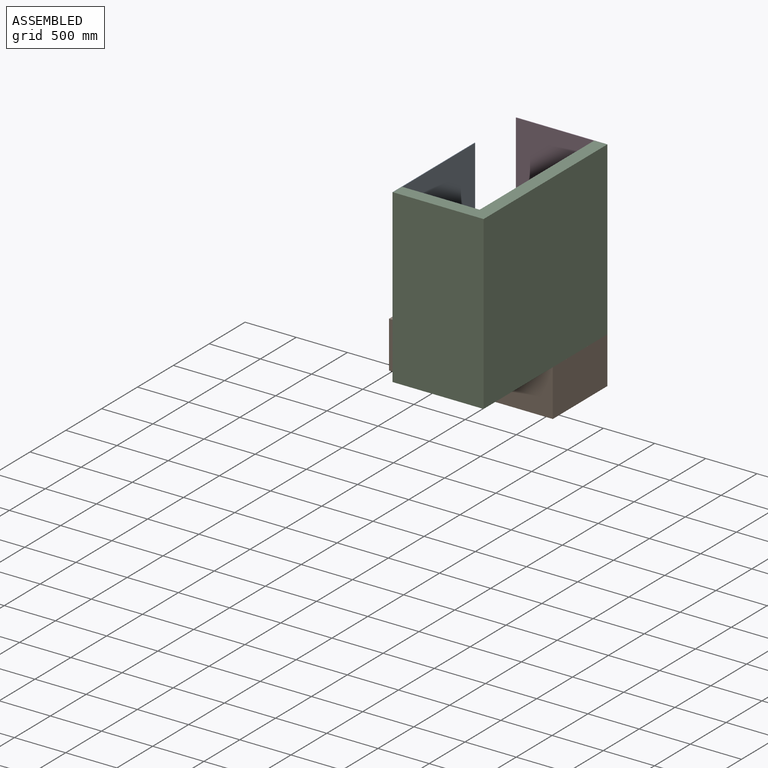
[diagram: assembled view]
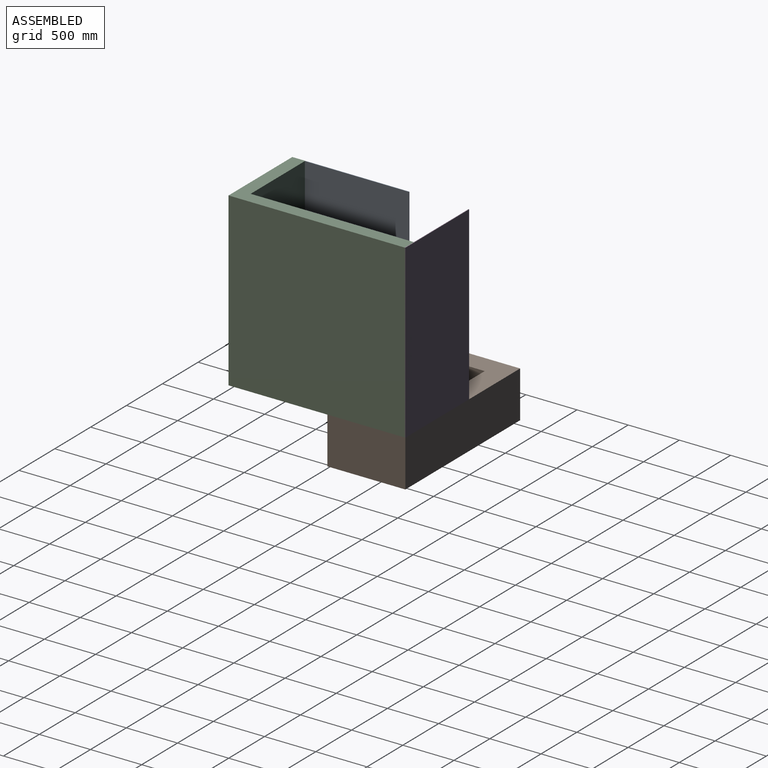
[diagram: assembled view, second angle]
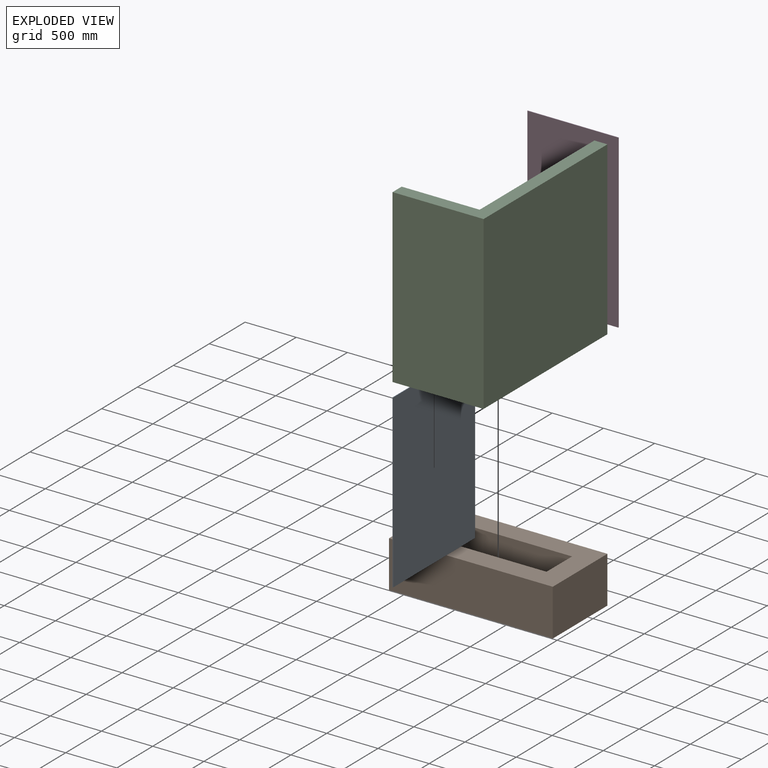
[diagram: exploded view]
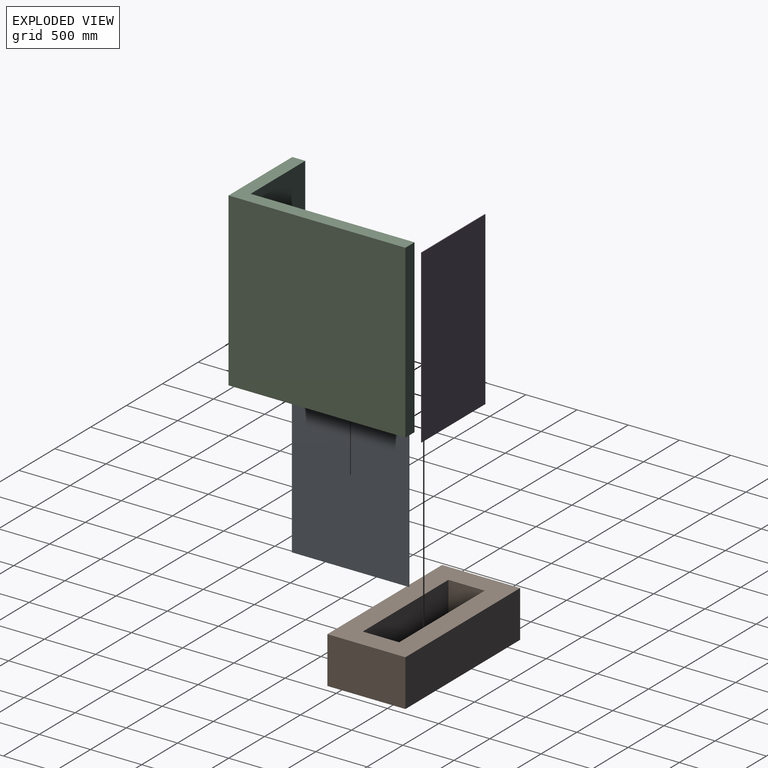
[diagram: exploded view, second angle]
ASSEMBLY  parts=4 mates=5
PART A: 6 faces, bbox 1143x6.4x1676.4 mm
  f0: plane 1143x6.35mm, normal (0,0,1), area 7258mm2, adj f1,f3,f4,f5
  f1: plane 1676.4x6.35mm, normal (-1,0,0), area 10645.1mm2, adj f0,f2,f4,f5
  f2: plane 1143x6.35mm, normal (0,0,-1), area 7258mm2, adj f1,f3,f4,f5
  f3: plane 1676.4x6.35mm, normal (1,0,0), area 10645.1mm2, adj f0,f2,f4,f5
  f4: plane 1676.4x1143mm, normal (0,-1,0), area 1916125.2mm2, adj f0,f1,f2,f3
  f5: plane 1676.4x1143mm, normal (0,1,0), area 1916125.2mm2, adj f0,f1,f2,f3
PART B: 10 faces, bbox 1600.2x762x457.2 mm
  f0: plane 1600.2x457.2mm, normal (0,1,0), area 731611.4mm2, adj f1,f7,f8,f9
  f1: plane 762x457.2mm, normal (-1,0,0), area 348386.4mm2, adj f0,f2,f8,f9
  f2: plane 1600.2x457.2mm, normal (0,-1,0), area 731611.4mm2, adj f1,f7,f8,f9
  f3: plane 457.2x355.6mm, normal (1,0,0), area 162580.3mm2, adj f4,f6,f8,f9
  f4: plane 1193.8x457.2mm, normal (0,-1,0), area 545805.4mm2, adj f3,f5,f8,f9
  f5: plane 457.2x355.6mm, normal (-1,0,0), area 162580.3mm2, adj f4,f6,f8,f9
  f6: plane 1193.8x457.2mm, normal (0,1,0), area 545805.4mm2, adj f3,f5,f8,f9
  f7: plane 762x457.2mm, normal (1,0,0), area 348386.4mm2, adj f0,f2,f8,f9
  f8: plane 1600.2x762mm, normal (0,0,1), area 794837.1mm2, adj f0,f1,f2,f3,f4,f5,f6,f7
  f9: plane 1600.2x762mm, normal (0,0,-1), area 794837.1mm2, adj f0,f1,f2,f3,f4,f5,f6,f7
PART C: 8 faces, bbox 889x1727.2x1676.4 mm
  f0: plane 1727.2x889mm, normal (0,0,1), area 316128.4mm2, adj f1,f3,f4,f5,f6,f7
  f1: plane 1676.4x127mm, normal (0,-1,0), area 212902.8mm2, adj f0,f2,f3,f4
  f2: plane 1727.2x889mm, normal (0,0,-1), area 316128.4mm2, adj f1,f3,f4,f5,f6,f7
  f3: plane 1727.2x1676.4mm, normal (1,0,0), area 2895478.1mm2, adj f0,f1,f2,f6
  f4: plane 1676.4x1600.2mm, normal (-1,0,0), area 2682575.3mm2, adj f0,f1,f2,f7
  f5: plane 1676.4x127mm, normal (-1,0,0), area 212902.8mm2, adj f0,f2,f6,f7
  f6: plane 1676.4x889mm, normal (0,1,0), area 1490319.6mm2, adj f0,f2,f3,f5
  f7: plane 1676.4x762mm, normal (0,-1,0), area 1277416.8mm2, adj f0,f2,f4,f5
PART D: 6 faces, bbox 889x6.4x1676.4 mm
  f0: plane 889x6.35mm, normal (0,0,1), area 5645.2mm2, adj f1,f3,f4,f5
  f1: plane 1676.4x6.35mm, normal (-1,0,0), area 10645.1mm2, adj f0,f2,f4,f5
  f2: plane 889x6.35mm, normal (0,0,-1), area 5645.2mm2, adj f1,f3,f4,f5
  f3: plane 1676.4x6.35mm, normal (1,0,0), area 10645.1mm2, adj f0,f2,f4,f5
  f4: plane 1676.4x889mm, normal (0,-1,0), area 1490319.6mm2, adj f0,f1,f2,f3
  f5: plane 1676.4x889mm, normal (0,1,0), area 1490319.6mm2, adj f0,f1,f2,f3
PLACE A rot(axis=(0,0,-1),90deg) t=(1129.01,-471.94,9.48)mm
PLACE B t=(1211.56,302.76,-1285.92)mm
PLACE C rot(axis=(-1,0,0),180deg) t=(1884.66,-116.34,9.48)mm
PLACE D rot(axis=(0,0,1),180deg) t=(1567.16,677.41,9.48)mm
MATE fastened A.f0 <-> C.f2  axis (0,0,-1) through (1122.66,-1043.44,847.68)mm
MATE parallel D.f4 <-> C.f1  axis (0,1,0) through (1567.16,683.76,9.48)mm
MATE parallel A.f5 <-> C.f5  axis (1,0,0) through (1129.01,-471.94,9.48)mm
MATE fastened B.f8 <-> C.f0  axis (0,0,1) through (2011.66,683.76,-828.72)mm
MATE fastened D.f4 <-> C.f1  axis (0,1,0) through (2011.66,683.76,847.68)mm
